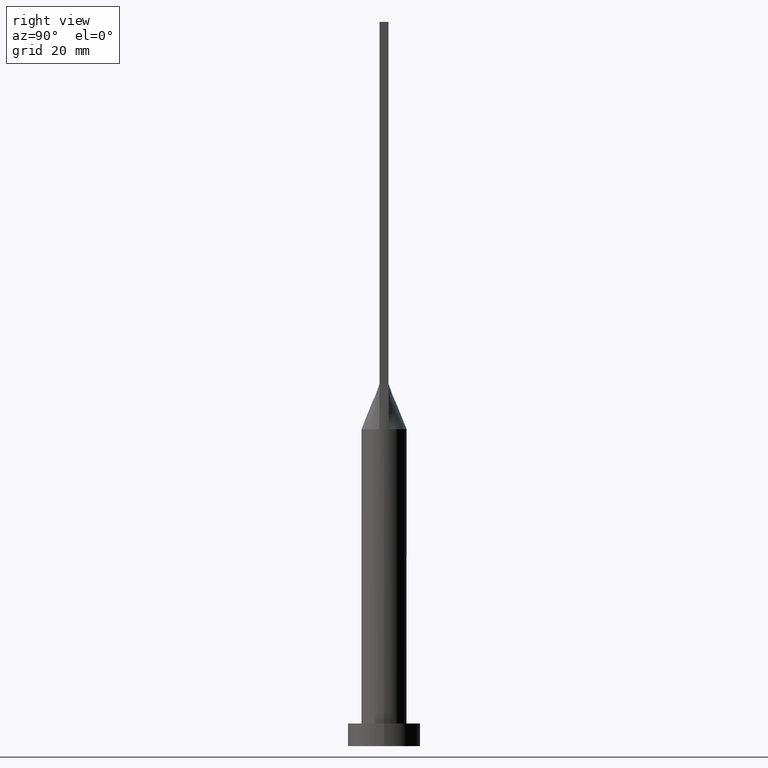
[diagram: clean part render]
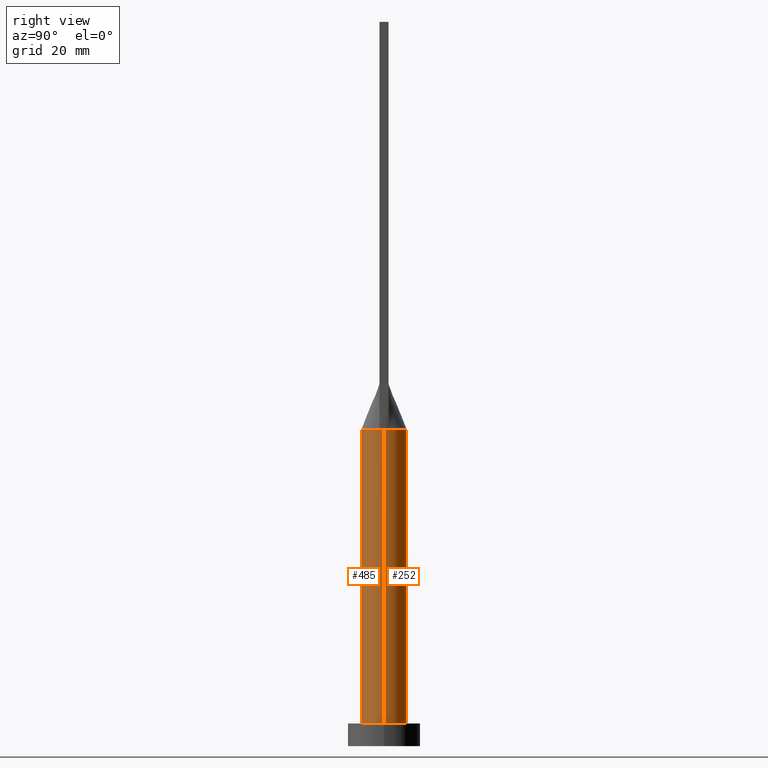
[diagram: same view with one multi-face feature highlighted, each face labeled with its STEP entity id]
A machine part, right view. The highlighted faces form ONE feature: a constant-radius fillet chain: 2 tangent blend faces with common blend radius 5 mm. The faces share edges in the B-rep.
Their STEP definitions:
[1] entity #485 (Cylinder):
#5 = VERTEX_POINT ( 'NONE', #162 ) ;
#26 = ORIENTED_EDGE ( 'NONE', *, *, #243, .T. ) ;
#34 = DIRECTION ( 'NONE',  ( 0.000000000000000000, 0.000000000000000000, 1.000000000000000000 ) ) ;
#36 = CARTESIAN_POINT ( 'NONE',  ( 5.000000000000000888, 3.511115666546218713E-17, 70.00000000000000000 ) ) ;
#43 = AXIS2_PLACEMENT_3D ( 'NONE', #172, #499, #310 ) ;
#69 = CIRCLE ( 'NONE', #108, 5.000000000000000000 ) ;
#71 = VERTEX_POINT ( 'NONE', #357 ) ;
#74 = EDGE_CURVE ( 'NONE', #511, #479, #398, .T. ) ;
#75 = CARTESIAN_POINT ( 'NONE',  ( 0.000000000000000000, 0.000000000000000000, 70.00000000000000000 ) ) ;
#83 = CYLINDRICAL_SURFACE ( 'NONE', #164, 5.000000000000000000 ) ;
#93 = CIRCLE ( 'NONE', #387, 5.000000000000000000 ) ;
#104 = VERTEX_POINT ( 'NONE', #264 ) ;
#108 = AXIS2_PLACEMENT_3D ( 'NONE', #75, #260, #350 ) ;
#114 = ORIENTED_EDGE ( 'NONE', *, *, #286, .F. ) ;
#122 = DIRECTION ( 'NONE',  ( -1.000000000000000000, 0.000000000000000000, 0.000000000000000000 ) ) ;
#138 = DIRECTION ( 'NONE',  ( -0.000000000000000000, -0.000000000000000000, -1.000000000000000000 ) ) ;
#144 = EDGE_CURVE ( 'NONE', #5, #71, #93, .T. ) ;
#162 = CARTESIAN_POINT ( 'NONE',  ( -5.000000000000000888, -2.735102206719564433E-16, 70.00000000000000000 ) ) ;
#164 = AXIS2_PLACEMENT_3D ( 'NONE', #356, #530, #122 ) ;
#170 = CARTESIAN_POINT ( 'NONE',  ( 5.000000000000000000, 6.123233995736766282E-16, 5.000000000000000000 ) ) ;
#172 = CARTESIAN_POINT ( 'NONE',  ( 0.000000000000000000, 0.000000000000000000, 70.00000000000000000 ) ) ;
#196 = ORIENTED_EDGE ( 'NONE', *, *, #504, .T. ) ;
#218 = DIRECTION ( 'NONE',  ( 1.000000000000000000, 0.000000000000000000, 0.000000000000000000 ) ) ;
#219 = DIRECTION ( 'NONE',  ( -0.000000000000000000, -0.000000000000000000, -1.000000000000000000 ) ) ;
#227 = CARTESIAN_POINT ( 'NONE',  ( 0.000000000000000000, 0.000000000000000000, 5.000000000000000000 ) ) ;
#243 = EDGE_CURVE ( 'NONE', #104, #292, #288, .T. ) ;
#260 = DIRECTION ( 'NONE',  ( 0.000000000000000000, 0.000000000000000000, 1.000000000000000000 ) ) ;
#264 = CARTESIAN_POINT ( 'NONE',  ( -5.000000000000000000, 0.000000000000000000, 5.000000000000000000 ) ) ;
#286 = EDGE_CURVE ( 'NONE', #71, #511, #69, .T. ) ;
#288 = CIRCLE ( 'NONE', #473, 5.000000000000000000 ) ;
#292 = VERTEX_POINT ( 'NONE', #170 ) ;
#303 = CARTESIAN_POINT ( 'NONE',  ( -5.000000000000000000, 0.000000000000000000, 70.00000000000000000 ) ) ;
#304 = ORIENTED_EDGE ( 'NONE', *, *, #554, .F. ) ;
#310 = DIRECTION ( 'NONE',  ( 1.000000000000000000, -9.769962616701377556E-15, 0.000000000000000000 ) ) ;
#316 = CARTESIAN_POINT ( 'NONE',  ( 4.892747712986307285, -1.030052143680505683, 70.00000000000000000 ) ) ;
#323 = DIRECTION ( 'NONE',  ( 1.000000000000000000, 0.000000000000000000, 0.000000000000000000 ) ) ;
#345 = FACE_OUTER_BOUND ( 'NONE', #566, .T. ) ;
#350 = DIRECTION ( 'NONE',  ( 1.000000000000000000, 0.000000000000000000, 0.000000000000000000 ) ) ;
#356 = CARTESIAN_POINT ( 'NONE',  ( 0.000000000000000000, 0.000000000000000000, 70.00000000000000000 ) ) ;
#357 = CARTESIAN_POINT ( 'NONE',  ( -4.892752739180945554, -1.030053203145257168, 70.00000000000000000 ) ) ;
#380 = ORIENTED_EDGE ( 'NONE', *, *, #74, .F. ) ;
#387 = AXIS2_PLACEMENT_3D ( 'NONE', #582, #34, #218 ) ;
#389 = ORIENTED_EDGE ( 'NONE', *, *, #144, .F. ) ;
#398 = CIRCLE ( 'NONE', #43, 5.000000000000000000 ) ;
#473 = AXIS2_PLACEMENT_3D ( 'NONE', #227, #555, #323 ) ;
#479 = VERTEX_POINT ( 'NONE', #36 ) ;
#485 = ADVANCED_FACE ( 'NONE', ( #345 ), #83, .T. ) ;
#499 = DIRECTION ( 'NONE',  ( 0.000000000000000000, 0.000000000000000000, 1.000000000000000000 ) ) ;
#503 = VECTOR ( 'NONE', #219, 1000.000000000000000 ) ;
#504 = EDGE_CURVE ( 'NONE', #5, #104, #539, .T. ) ;
#505 = LINE ( 'NONE', #558, #579 ) ;
#511 = VERTEX_POINT ( 'NONE', #316 ) ;
#530 = DIRECTION ( 'NONE',  ( -0.000000000000000000, -0.000000000000000000, -1.000000000000000000 ) ) ;
#539 = LINE ( 'NONE', #303, #503 ) ;
#554 = EDGE_CURVE ( 'NONE', #479, #292, #505, .T. ) ;
#555 = DIRECTION ( 'NONE',  ( 0.000000000000000000, 0.000000000000000000, 1.000000000000000000 ) ) ;
#558 = CARTESIAN_POINT ( 'NONE',  ( 5.000000000000000000, 6.123233995736766282E-16, 70.00000000000000000 ) ) ;
#566 = EDGE_LOOP ( 'NONE', ( #304, #380, #114, #389, #196, #26 ) ) ;
#579 = VECTOR ( 'NONE', #138, 1000.000000000000000 ) ;
#582 = CARTESIAN_POINT ( 'NONE',  ( 0.000000000000000000, 0.000000000000000000, 70.00000000000000000 ) ) ;
[2] entity #252 (Cylinder):
#5 = VERTEX_POINT ( 'NONE', #162 ) ;
#28 = CIRCLE ( 'NONE', #343, 5.000000000000000000 ) ;
#31 = DIRECTION ( 'NONE',  ( 0.000000000000000000, 0.000000000000000000, 1.000000000000000000 ) ) ;
#36 = CARTESIAN_POINT ( 'NONE',  ( 5.000000000000000888, 3.511115666546218713E-17, 70.00000000000000000 ) ) ;
#38 = CIRCLE ( 'NONE', #308, 5.000000000000000000 ) ;
#76 = CARTESIAN_POINT ( 'NONE',  ( -3.900093280396789819, 3.182195704254724422, 70.00000000000002842 ) ) ;
#91 = EDGE_CURVE ( 'NONE', #439, #237, #476, .T. ) ;
#92 = DIRECTION ( 'NONE',  ( 0.000000000000000000, 0.000000000000000000, 1.000000000000000000 ) ) ;
#100 = ORIENTED_EDGE ( 'NONE', *, *, #554, .T. ) ;
#104 = VERTEX_POINT ( 'NONE', #264 ) ;
#110 = DIRECTION ( 'NONE',  ( -0.000000000000000000, -0.000000000000000000, -1.000000000000000000 ) ) ;
#121 = EDGE_CURVE ( 'NONE', #479, #439, #563, .T. ) ;
#125 = CARTESIAN_POINT ( 'NONE',  ( -1.331739278681919991, 4.830988864699813590, 70.00000000000000000 ) ) ;
#127 = CARTESIAN_POINT ( 'NONE',  ( -0.3380808736611314869, 4.999999999999999112, 70.00000000000000000 ) ) ;
#131 = CARTESIAN_POINT ( 'NONE',  ( 0.000000000000000000, 0.000000000000000000, 70.00000000000000000 ) ) ;
#138 = DIRECTION ( 'NONE',  ( -0.000000000000000000, -0.000000000000000000, -1.000000000000000000 ) ) ;
#162 = CARTESIAN_POINT ( 'NONE',  ( -5.000000000000000888, -2.735102206719564433E-16, 70.00000000000000000 ) ) ;
#168 = CARTESIAN_POINT ( 'NONE',  ( 1.331739278681919991, 4.830988864699814478, 70.00000000000000000 ) ) ;
#170 = CARTESIAN_POINT ( 'NONE',  ( 5.000000000000000000, 6.123233995736766282E-16, 5.000000000000000000 ) ) ;
#178 = CARTESIAN_POINT ( 'NONE',  ( -4.214142381859630859, 2.735777372109856387, 70.00000000000000000 ) ) ;
#180 = CARTESIAN_POINT ( 'NONE',  ( 4.214142381859630859, 2.735777372109855943, 70.00000000000001421 ) ) ;
#190 = CARTESIAN_POINT ( 'NONE',  ( -4.892747712986291297, 1.030052143680498133, 70.00000000000000000 ) ) ;
#206 = EDGE_CURVE ( 'NONE', #237, #5, #28, .T. ) ;
#215 = DIRECTION ( 'NONE',  ( 0.000000000000000000, 0.000000000000000000, 1.000000000000000000 ) ) ;
#219 = DIRECTION ( 'NONE',  ( -0.000000000000000000, -0.000000000000000000, -1.000000000000000000 ) ) ;
#222 = CARTESIAN_POINT ( 'NONE',  ( -3.067114325249248097, 3.991228734590924976, 70.00000000000002842 ) ) ;
#225 = CARTESIAN_POINT ( 'NONE',  ( 4.667610010780610885, 1.859271532507960289, 70.00000000000001421 ) ) ;
#231 = ORIENTED_EDGE ( 'NONE', *, *, #91, .F. ) ;
#237 = VERTEX_POINT ( 'NONE', #190 ) ;
#246 = CARTESIAN_POINT ( 'NONE',  ( 0.000000000000000000, 0.000000000000000000, 70.00000000000000000 ) ) ;
#247 = ORIENTED_EDGE ( 'NONE', *, *, #504, .F. ) ;
#252 = ADVANCED_FACE ( 'NONE', ( #467 ), #339, .T. ) ;
#254 = EDGE_LOOP ( 'NONE', ( #556, #100, #294, #247, #383, #231 ) ) ;
#261 = CARTESIAN_POINT ( 'NONE',  ( 3.067114325249248097, 3.991228734590925864, 70.00000000000002842 ) ) ;
#263 = CARTESIAN_POINT ( 'NONE',  ( 0.000000000000000000, 0.000000000000000000, 5.000000000000000000 ) ) ;
#264 = CARTESIAN_POINT ( 'NONE',  ( -5.000000000000000000, 0.000000000000000000, 5.000000000000000000 ) ) ;
#266 = CARTESIAN_POINT ( 'NONE',  ( -4.808752461626937702, 1.429035605956548771, 70.00000000000000000 ) ) ;
#270 = CARTESIAN_POINT ( 'NONE',  ( 4.808752461626938590, 1.429035605956548549, 70.00000000000000000 ) ) ;
#274 = DIRECTION ( 'NONE',  ( 1.000000000000000000, 0.000000000000000000, 0.000000000000000000 ) ) ;
#292 = VERTEX_POINT ( 'NONE', #170 ) ;
#294 = ORIENTED_EDGE ( 'NONE', *, *, #365, .T. ) ;
#303 = CARTESIAN_POINT ( 'NONE',  ( -5.000000000000000000, 0.000000000000000000, 70.00000000000000000 ) ) ;
#308 = AXIS2_PLACEMENT_3D ( 'NONE', #263, #31, #493 ) ;
#339 = CYLINDRICAL_SURFACE ( 'NONE', #495, 5.000000000000000000 ) ;
#343 = AXIS2_PLACEMENT_3D ( 'NONE', #508, #92, #274 ) ;
#352 = CARTESIAN_POINT ( 'NONE',  ( 3.900093280396791151, 3.182195704254724422, 70.00000000000001421 ) ) ;
#359 = CARTESIAN_POINT ( 'NONE',  ( 0.6760916456145784625, 4.965368365385191218, 70.00000000000001421 ) ) ;
#365 = EDGE_CURVE ( 'NONE', #292, #104, #38, .T. ) ;
#383 = ORIENTED_EDGE ( 'NONE', *, *, #206, .F. ) ;
#392 = CARTESIAN_POINT ( 'NONE',  ( 4.892748924933744803, 1.030052405249211045, 70.00000000000000000 ) ) ;
#404 = CARTESIAN_POINT ( 'NONE',  ( 0.3380808736611315979, 4.999999999999999112, 70.00000000000000000 ) ) ;
#439 = VERTEX_POINT ( 'NONE', #392 ) ;
#450 = DIRECTION ( 'NONE',  ( 1.000000000000000000, 0.000000000000000000, 0.000000000000000000 ) ) ;
#467 = FACE_OUTER_BOUND ( 'NONE', #254, .T. ) ;
#476 = B_SPLINE_CURVE_WITH_KNOTS ( 'NONE', 3,
 ( #592, #270, #225, #180, #352, #261, #538, #594, #168, #359, #404, #127, #543, #125, #534, #502, #222, #76, #178, #497, #266, #588 ),
 .UNSPECIFIED., .F., .F.,
 ( 4, 2, 2, 2, 2, 2, 2, 2, 2, 2, 4 ),
 ( 0.000000000000000000, 0.1250000000000000278, 0.2500000000000000000, 0.3749999999999999445, 0.4375000000000000000, 0.5000000000000000000, 0.5625000000000000000, 0.6250000000000000000, 0.7500000000000000000, 0.8750000000000001110, 1.000000000000000000 ),
 .UNSPECIFIED. ) ;
#479 = VERTEX_POINT ( 'NONE', #36 ) ;
#493 = DIRECTION ( 'NONE',  ( 1.000000000000000000, 0.000000000000000000, 0.000000000000000000 ) ) ;
#495 = AXIS2_PLACEMENT_3D ( 'NONE', #246, #110, #528 ) ;
#497 = CARTESIAN_POINT ( 'NONE',  ( -4.667610010780610885, 1.859271532507960067, 70.00000000000001421 ) ) ;
#502 = CARTESIAN_POINT ( 'NONE',  ( -2.546422404201597711, 4.351724242187074765, 70.00000000000001421 ) ) ;
#503 = VECTOR ( 'NONE', #219, 1000.000000000000000 ) ;
#504 = EDGE_CURVE ( 'NONE', #5, #104, #539, .T. ) ;
#505 = LINE ( 'NONE', #558, #579 ) ;
#508 = CARTESIAN_POINT ( 'NONE',  ( 0.000000000000000000, 0.000000000000000000, 70.00000000000000000 ) ) ;
#528 = DIRECTION ( 'NONE',  ( -1.000000000000000000, 0.000000000000000000, 0.000000000000000000 ) ) ;
#534 = CARTESIAN_POINT ( 'NONE',  ( -1.649264041307594963, 4.731318088779739917, 70.00000000000000000 ) ) ;
#538 = CARTESIAN_POINT ( 'NONE',  ( 2.546422404201596823, 4.351724242187075653, 70.00000000000000000 ) ) ;
#539 = LINE ( 'NONE', #303, #503 ) ;
#543 = CARTESIAN_POINT ( 'NONE',  ( -0.6760916456145782405, 4.965368365385191218, 70.00000000000001421 ) ) ;
#554 = EDGE_CURVE ( 'NONE', #479, #292, #505, .T. ) ;
#556 = ORIENTED_EDGE ( 'NONE', *, *, #121, .F. ) ;
#558 = CARTESIAN_POINT ( 'NONE',  ( 5.000000000000000000, 6.123233995736766282E-16, 70.00000000000000000 ) ) ;
#563 = CIRCLE ( 'NONE', #586, 5.000000000000000000 ) ;
#579 = VECTOR ( 'NONE', #138, 1000.000000000000000 ) ;
#586 = AXIS2_PLACEMENT_3D ( 'NONE', #131, #215, #450 ) ;
#588 = CARTESIAN_POINT ( 'NONE',  ( -4.892747712986291297, 1.030052143680498133, 70.00000000000000000 ) ) ;
#592 = CARTESIAN_POINT ( 'NONE',  ( 4.892748924933744803, 1.030052405249211045, 70.00000000000000000 ) ) ;
#594 = CARTESIAN_POINT ( 'NONE',  ( 1.649264041307594297, 4.731318088779739917, 69.99999999999998579 ) ) ;